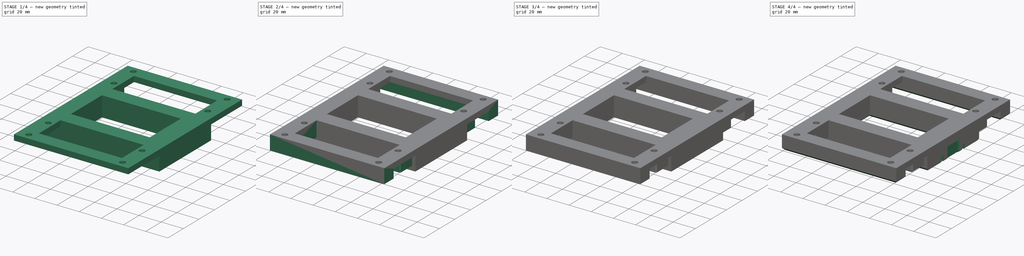
[diagram: build sequence overview — one tinted view per stage of 4, left to right]
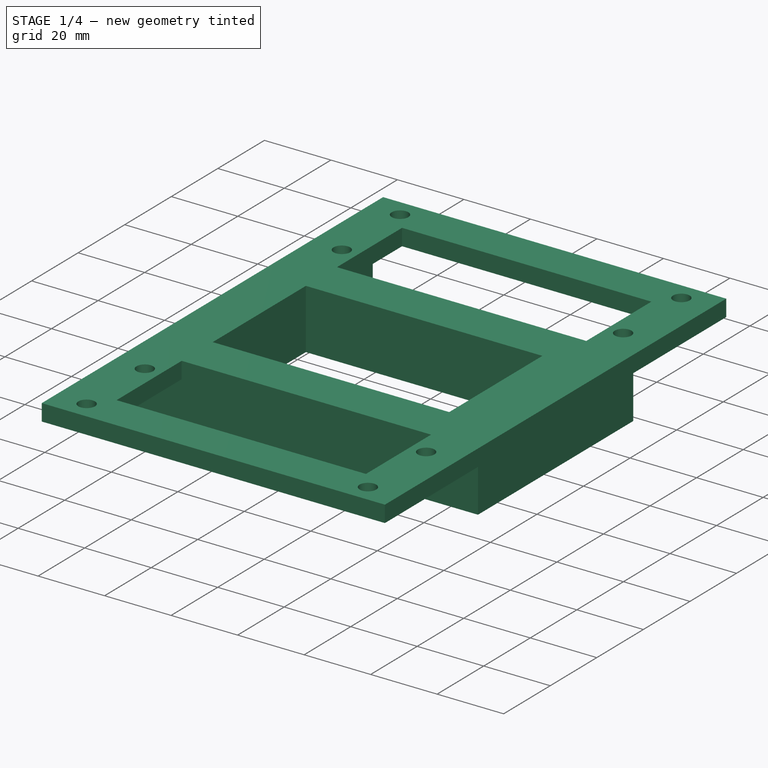
[diagram: stage 1 of 4 — iso view after this stage's code; geometry added in this stage tinted green]
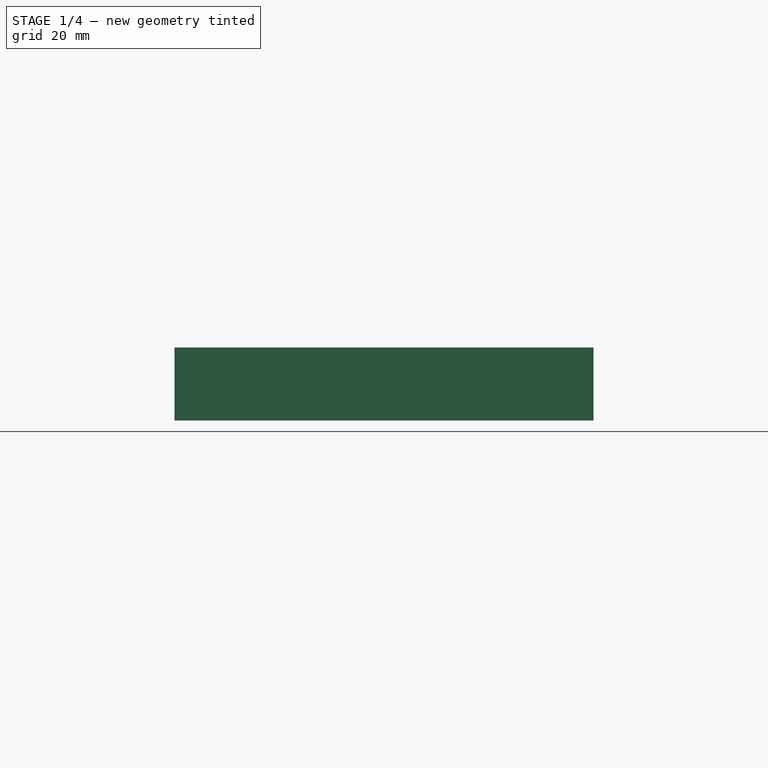
[diagram: stage 1 of 4 — front view after this stage's code; geometry added in this stage tinted green]
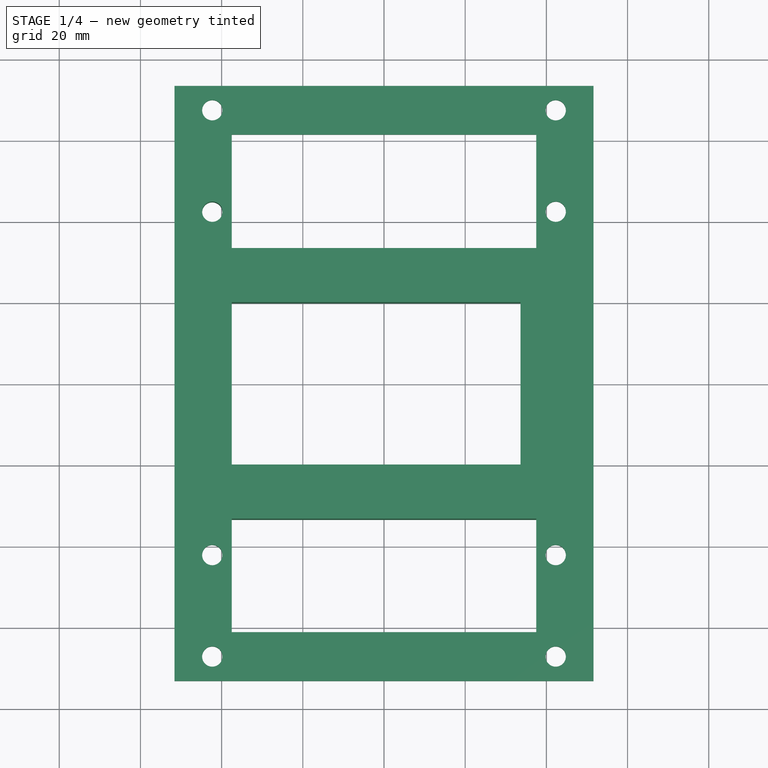
[diagram: stage 1 of 4 — top view after this stage's code; geometry added in this stage tinted green]
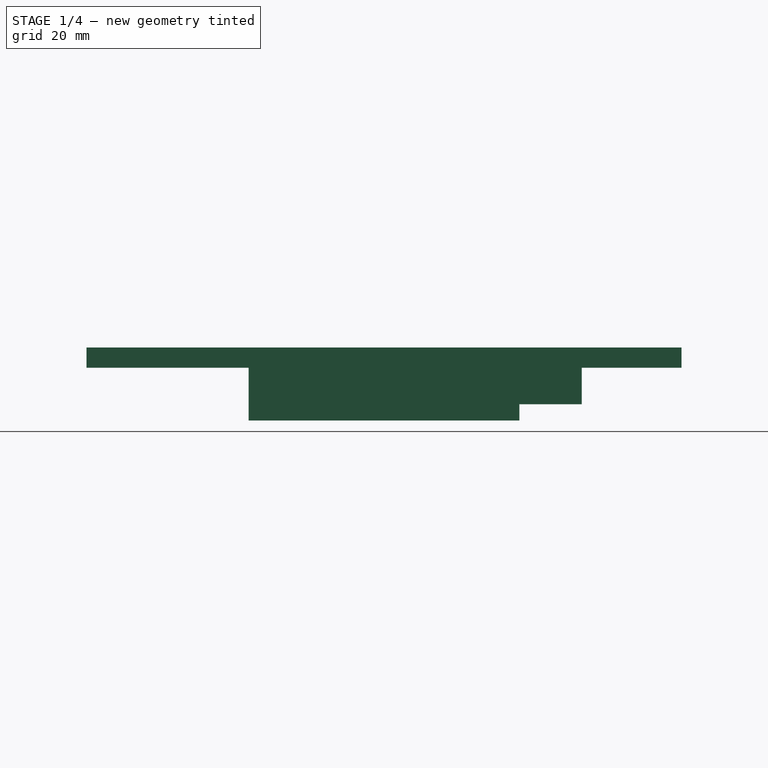
[diagram: stage 1 of 4 — right view after this stage's code; geometry added in this stage tinted green]
FCSTD DOCUMENT  (FreeCAD 0.18R15969 (Git))
Label: curing_rig_6
License: All rights reserved
LicenseURL: http://en.wikipedia.org/wiki/All_rights_reserved
objects: Sketcher::SketchObject×7, PartDesign::Pad×4, PartDesign::Mirrored×3, PartDesign::Pocket×3, Spreadsheet::Sheet×2, PartDesign::MultiTransform×2, PartDesign::Chamfer×2, Part::Feature×1, PartDesign::Body×1
note: 30 computed .brp shape members not serialized (recipe doc carries the construction recipe); baked Part::Feature solids carry a one-line shape summary decoded from their .brp

FEATURE [Spreadsheet::Sheet] Spreadsheet  label="Generic"
  cells = A1=Dimension; B1(dimension)==106.6mm; A2=Corner Radius; B2(cornerRadius)=2; C2=(mm); A3=Screw Diameter; B3(screwDiameter)=2.2; C3=(mm); A4=Screw Diameter Plastic; B4(screwDiameterPlastic)=2.8; C4=(mm); A5=Screw Distance; B5(screwDistance)=101; C5=(mm)
FEATURE [Spreadsheet::Sheet] Spreadsheet001  label="Unibody"
  cells = A1=Height; B1(height)=15; C1=(mm); A5=Rib Length; B5(ribLength)=5; A6=Rib Width; B6(ribWidth)=1.5; A7=Rib Height; B7(ribHeight)=2.8; A8=Rib Dist 1; B8(ribDist1)=19.05; A9=Rib Dist 2; B9(ribDist2)=34.29; C9==1.35in; A12=PCB Dimensions; B12(pcbDimensions)=100; A13=PCB Thickness; B13(pcbThickness)=1.6; A16=Feet Diameter; B16(feetDiameter)=10; A17=Feet Distance; B17(feetDistance)=85; A18=Feet Depth; B18(feetDepth)=0.5; A19=Feet Thickness; B19(feetThickness)=1
FEATURE [Sketcher::SketchObject] Sketch091
  MapMode = 5
  Support = -> [XY_Plane]
  expr: Constraints[34] = 102.6 + 0.6
  sketch-geometry (31):
    g0: LineSegment StartX=-51.6 StartY=73.3 StartZ=0 EndX=51.6 EndY=73.3 EndZ=0
    g1: LineSegment StartX=51.6 StartY=73.3 StartZ=0 EndX=51.6 EndY=-73.3 EndZ=0
    g2: LineSegment StartX=51.6 StartY=-73.3 StartZ=0 EndX=-51.6 EndY=-73.3 EndZ=0
    g3: LineSegment StartX=-51.6 StartY=-73.3 StartZ=0 EndX=-51.6 EndY=73.3 EndZ=0
    g4: LineSegment StartX=-37.5 StartY=61.3 StartZ=0 EndX=37.5 EndY=61.3 EndZ=0
    g5: LineSegment StartX=37.5 StartY=61.3 StartZ=0 EndX=37.5 EndY=-61.3 EndZ=0
    g6: LineSegment StartX=37.5 StartY=-61.3 StartZ=0 EndX=-37.5 EndY=-61.3 EndZ=0
    g7: LineSegment StartX=-37.5 StartY=-61.3 StartZ=0 EndX=-37.5 EndY=61.3 EndZ=0
    g8: LineSegment [constr] StartX=-37.5 StartY=61.3 StartZ=0 EndX=0 EndY=0 EndZ=0
    g9: LineSegment [constr] StartX=0 StartY=0 StartZ=0 EndX=37.5 EndY=61.3 EndZ=0
    g10: LineSegment [constr] StartX=0 StartY=0 StartZ=0 EndX=-37.5 EndY=-61.3 EndZ=0
    g11: LineSegment [constr] StartX=-51.6 StartY=73.3 StartZ=0 EndX=-7.1e-15 EndY=0 EndZ=0
    g12: LineSegment [constr] StartX=0 StartY=0 StartZ=0 EndX=51.6 EndY=73.3 EndZ=0
    g13: LineSegment [constr] StartX=0 StartY=0 StartZ=0 EndX=-51.6 EndY=-73.3 EndZ=0
    g14: LineSegment [constr] StartX=-42.3 StartY=42.3 StartZ=0 EndX=-42.3 EndY=-42.3 EndZ=0
    g15: LineSegment [constr] StartX=-42.3 StartY=-42.3 StartZ=0 EndX=42.3 EndY=-42.3 EndZ=0
    g16: LineSegment [constr] StartX=42.3 StartY=-42.3 StartZ=0 EndX=42.3 EndY=42.3 EndZ=0
    g17: LineSegment [constr] StartX=42.3 StartY=42.3 StartZ=0 EndX=-42.3 EndY=42.3 EndZ=0
    g18: Circle [constr] CenterX=0 CenterY=0 CenterZ=0 NormalX=0 NormalY=0 NormalZ=1 AngleXU=0 Radius=59.8212
    g19: Circle CenterX=-42.3 CenterY=42.3 CenterZ=0 NormalX=0 NormalY=0 NormalZ=1 AngleXU=0 Radius=2.5
    g20: Circle CenterX=42.3 CenterY=42.3 CenterZ=0 NormalX=0 NormalY=0 NormalZ=1 AngleXU=0 Radius=2.5
    g21: Circle CenterX=-42.3 CenterY=-42.3 CenterZ=0 NormalX=0 NormalY=0 NormalZ=1 AngleXU=0 Radius=2.5
    g22: Circle CenterX=42.3 CenterY=-42.3 CenterZ=0 NormalX=0 NormalY=0 NormalZ=1 AngleXU=0 Radius=2.5
    g23: LineSegment [constr] StartX=-42.3 StartY=42.3 StartZ=0 EndX=-42.3 EndY=67.3 EndZ=0
    g24: LineSegment [constr] StartX=42.3 StartY=42.3 StartZ=0 EndX=42.3 EndY=67.3 EndZ=0
    g25: LineSegment [constr] StartX=-42.3 StartY=-42.3 StartZ=0 EndX=-42.3 EndY=-67.3 EndZ=0
    g26: LineSegment [constr] StartX=42.3 StartY=-42.3 StartZ=0 EndX=42.3 EndY=-67.3 EndZ=0
    g27: Circle CenterX=-42.3 CenterY=67.3 CenterZ=0 NormalX=0 NormalY=0 NormalZ=1 AngleXU=0 Radius=2.5
    g28: Circle CenterX=42.3 CenterY=67.3 CenterZ=0 NormalX=0 NormalY=0 NormalZ=1 AngleXU=0 Radius=2.5
    g29: Circle CenterX=42.3 CenterY=-67.3 CenterZ=0 NormalX=0 NormalY=0 NormalZ=1 AngleXU=0 Radius=2.5
    g30: Circle CenterX=-42.3 CenterY=-67.3 CenterZ=0 NormalX=0 NormalY=0 NormalZ=1 AngleXU=0 Radius=2.5
  constraints (78):
    c: Coincident(g0,g1)
    c: Coincident(g1,g2)
    c: Coincident(g2,g3)
    c: Coincident(g3,g0)
    c: Horizontal(g0)
    c: Horizontal(g2)
    c: Vertical(g1)
    c: Vertical(g3)
    c: Coincident(g4,g5)
    c: Coincident(g5,g6)
    c: Coincident(g6,g7)
    c: Coincident(g7,g4)
    c: Horizontal(g4)
    c: Horizontal(g6)
    c: Vertical(g5)
    c: Vertical(g7)
    c: Coincident(g8,g4)
    c: Coincident(g8,g-1)
    c: Coincident(g9,g-1)
    c: Coincident(g9,g4)
    c: Coincident(g10,g-1)
    c: Coincident(g10,g6)
    c: Equal(g10,g8)
    c: Equal(g8,g9)
    c: Coincident(g11,g0)
    c: Coincident(g11,g-1)
    c: Coincident(g12,g-1)
    c: Coincident(g12,g0)
    c: Coincident(g13,g-1)
    c: Coincident(g13,g2)
    c: Equal(g13,g11)
    c: Equal(g11,g12)
    c: DistanceY(g7,g7) = 122.6
    c: DistanceX(g4,g4) = 75
    c: DistanceX(g0,g0) = 103.2
    c: DistanceY(g3,g3) = 146.6
    c: Coincident(g14,g15)
    c: Coincident(g15,g16)
    c: Coincident(g16,g17)
    c: Coincident(g17,g14)
    c: Equal(g14,g15)
    c: Equal(g14,g16)
    c: Equal(g14,g17)
    c: PointOnObject(g14,g18)
    c: PointOnObject(g15,g18)
    c: PointOnObject(g16,g18)
    c: PointOnObject(g17,g18)
    c: Coincident(g18,g-1)
    c: Horizontal(g17)
    c: DistanceX(g17,g17) = 84.6
    c: Coincident(g19,g14)
    c: Coincident(g20,g16)
    c: Coincident(g21,g14)
    c: Coincident(g22,g15)
    c: Radius(g22) = 2.5
    c: Equal(g22,g21)
    c: Equal(g22,g19)
    c: Equal(g22,g20)
    c: Coincident(g23,g19)
    c: Vertical(g23)
    c: Coincident(g24,g20)
    c: Vertical(g24)
    c: Coincident(g25,g21)
    c: Vertical(g25)
    c: Coincident(g26,g22)
    c: Vertical(g26)
    c: Equal(g25,g26)
    c: Equal(g26,g24)
    c: Equal(g24,g23)
    c: DistanceY(g23,g23) = 25
    c: Coincident(g27,g23)
    c: Coincident(g28,g24)
    c: Coincident(g29,g26)
    c: Coincident(g30,g25)
    c: Radius(g30) = 2.5
    c: Equal(g30,g29)
    c: Equal(g30,g28)
    c: Equal(g30,g27)
FEATURE [PartDesign::Pad] Pad046
  Length = 5
  Length2 = 100
  Profile = -> Sketch091
  Type = 0
FEATURE [Sketcher::SketchObject] Sketch092
  ExternalGeometry = -> [Pad046]
  MapMode = 5
  Placement = pos=(0,0,5) rot=(0,0,1;0rad)
  Support = -> [Pad046]
  sketch-geometry (25):
    g0: LineSegment StartX=-51.6 StartY=33.3375 StartZ=0 EndX=51.6 EndY=33.3375 EndZ=0
    g1: LineSegment StartX=51.6 StartY=33.3375 StartZ=0 EndX=51.6 EndY=20.0025 EndZ=0
    g2: LineSegment [constr] StartX=51.6 StartY=20.0025 StartZ=0 EndX=-51.6 EndY=20.0025 EndZ=0
    g3: LineSegment StartX=-51.6 StartY=20.0025 StartZ=0 EndX=-51.6 EndY=33.3375 EndZ=0
    g4: LineSegment [constr] StartX=-51.6 StartY=-20.0025 StartZ=0 EndX=51.6 EndY=-20.0025 EndZ=0
    g5: LineSegment StartX=51.6 StartY=-20.0025 StartZ=0 EndX=51.6 EndY=-33.3375 EndZ=0
    g6: LineSegment StartX=51.6 StartY=-33.3375 StartZ=0 EndX=-51.6 EndY=-33.3375 EndZ=0
    g7: LineSegment StartX=-51.6 StartY=-33.3375 StartZ=0 EndX=-51.6 EndY=-20.0025 EndZ=0
    g8: LineSegment [constr] StartX=-51.6 StartY=20.0025 StartZ=0 EndX=-51.6 EndY=-20.0025 EndZ=0
    g9: LineSegment [constr] StartX=51.6 StartY=20.0025 StartZ=0 EndX=51.6 EndY=-20.0025 EndZ=0
    g10: LineSegment [constr] StartX=-51.6 StartY=20.0025 StartZ=0 EndX=0 EndY=0 EndZ=0
    g11: LineSegment [constr] StartX=0 StartY=0 StartZ=0 EndX=51.6 EndY=20.0025 EndZ=0
    g12: LineSegment [constr] StartX=0 StartY=0 StartZ=0 EndX=-51.6 EndY=-20.0025 EndZ=0
    g13: LineSegment [constr] StartX=0 StartY=0 StartZ=0 EndX=-51.6 EndY=33.3375 EndZ=0
    g14: LineSegment [constr] StartX=0 StartY=0 StartZ=0 EndX=-51.6 EndY=-33.3375 EndZ=0
    g15: LineSegment [constr] StartX=-51.6 StartY=33.3375 StartZ=0 EndX=0 EndY=26.67 EndZ=0
    g16: LineSegment [constr] StartX=0 StartY=26.67 StartZ=0 EndX=-51.6 EndY=20.0025 EndZ=0
    g17: LineSegment StartX=-51.6 StartY=20.0025 StartZ=0 EndX=-51.6 EndY=-20.0025 EndZ=0
    g18: LineSegment StartX=51.6 StartY=20.0025 StartZ=0 EndX=51.6 EndY=-20.0025 EndZ=0
    g19: LineSegment StartX=-37.5 StartY=20.0025 StartZ=0 EndX=33.6215 EndY=20.0025 EndZ=0
    g20: LineSegment StartX=33.6215 StartY=20.0025 StartZ=0 EndX=33.6215 EndY=-20.0025 EndZ=0
    g21: LineSegment StartX=33.6215 StartY=-20.0025 StartZ=0 EndX=-37.5 EndY=-20.0025 EndZ=0
    g22: LineSegment StartX=-37.5 StartY=-20.0025 StartZ=0 EndX=-37.5 EndY=20.0025 EndZ=0
    g23: LineSegment [constr] StartX=-37.5 StartY=20.0025 StartZ=0 EndX=0 EndY=0 EndZ=0
    g24: LineSegment [constr] StartX=0 StartY=0 StartZ=0 EndX=33.6215 EndY=-20.0025 EndZ=0
  constraints (62):
    c: Coincident(g0,g1)
    c: Coincident(g1,g2)
    c: Coincident(g2,g3)
    c: Coincident(g3,g0)
    c: Horizontal(g0)
    c: Horizontal(g2)
    c: Vertical(g1)
    c: Vertical(g3)
    c: Coincident(g4,g5)
    c: Coincident(g5,g6)
    c: Coincident(g6,g7)
    c: Coincident(g7,g4)
    c: Horizontal(g4)
    c: Horizontal(g6)
    c: Vertical(g5)
    c: Vertical(g7)
    c: Coincident(g8,g2)
    c: Coincident(g8,g4)
    c: Vertical(g8)
    c: Coincident(g9,g1)
    c: Coincident(g9,g4)
    c: Vertical(g9)
    c: Coincident(g10,g2)
    c: Coincident(g10,g-1)
    c: Coincident(g11,g-1)
    c: Coincident(g11,g1)
    c: Coincident(g12,g-1)
    c: Coincident(g12,g4)
    c: Equal(g12,g10)
    c: Equal(g10,g11)
    c: Coincident(g13,g-1)
    c: Coincident(g13,g0)
    c: Coincident(g14,g-1)
    c: Coincident(g14,g6)
    c: Equal(g13,g14)
    c: Coincident(g15,g0)
    c: PointOnObject(g15,g-2)
    c: Coincident(g16,g15)
    c: Coincident(g16,g2)
    c: Equal(g16,g15)
    c: DistanceY(g-1,g15) = 26.67
    c: DistanceY(g3,g3) = 13.335
    c: PointOnObject(g0,g-3)
    c: Coincident(g17,g3)
    c: Coincident(g17,g7)
    c: Coincident(g18,g1)
    c: Coincident(g18,g5)
    c: Coincident(g19,g20)
    c: Coincident(g20,g21)
    c: Coincident(g21,g22)
    c: Coincident(g22,g19)
    c: Horizontal(g19)
    c: Horizontal(g21)
    c: Vertical(g20)
    c: Vertical(g22)
    c: PointOnObject(g19,g-4)
    c: PointOnObject(g20,g4)
    c: PointOnObject(g19,g2)
    c: Coincident(g23,g19)
    c: Coincident(g23,g-1)
    c: Coincident(g24,g-1)
    c: Coincident(g24,g20)
FEATURE [PartDesign::Pad] Pad047
  BaseFeature = -> Pad046
  Length = 18
  Length2 = 100
  Profile = -> Sketch092
  Refine = true
  Reversed = true
  Type = 0
FEATURE [Sketcher::SketchObject] Sketch093
  ExternalGeometry = -> [Pad047]
  MapMode = 5
  Placement = pos=(0,0,0) rot=(1,0,0;3.14159rad)
  Support = -> [Pad047]
  sketch-geometry (6):
    g0: Circle CenterX=-42.3 CenterY=-42.3 CenterZ=0 NormalX=0 NormalY=0 NormalZ=1 AngleXU=0 Radius=2.5
    g1: LineSegment StartX=-37.5 StartY=-33.3375 StartZ=0 EndX=-37.5 EndY=-48.7 EndZ=0
    g2: LineSegment StartX=-37.5 StartY=-33.3375 StartZ=0 EndX=-48.7 EndY=-33.3375 EndZ=0
    g3: LineSegment StartX=-48.7 StartY=-33.3375 StartZ=0 EndX=-48.7 EndY=-47.7 EndZ=0
    g4: LineSegment StartX=-37.5 StartY=-48.7 StartZ=0 EndX=-47.7 EndY=-48.7 EndZ=0
    g5: LineSegment StartX=-47.7 StartY=-48.7 StartZ=0 EndX=-48.7 EndY=-47.7 EndZ=0
  constraints (16):
    c: Coincident(g0,g-3)
    c: Radius(g0) = 2.5
    c: Coincident(g1,g-5)
    c: PointOnObject(g1,g-5)
    c: Coincident(g2,g1)
    c: PointOnObject(g2,g-4)
    c: Coincident(g3,g2)
    c: Vertical(g3)
    c: Coincident(g4,g1)
    c: Horizontal(g4)
    c: Coincident(g5,g4)
    c: Coincident(g5,g3)
    c: Angle(g5,g3) = 2.35619
    c: DistanceY(g4,g3) = 1
    c: DistanceY(g1,g-1) = 48.7
    c: DistanceX(g2,g-1) = 48.7
FEATURE [PartDesign::Pad] Pad048
  BaseFeature = -> Pad047
  Length = 9
  Length2 = 100
  Profile = -> Sketch093
  Refine = true
  Type = 0
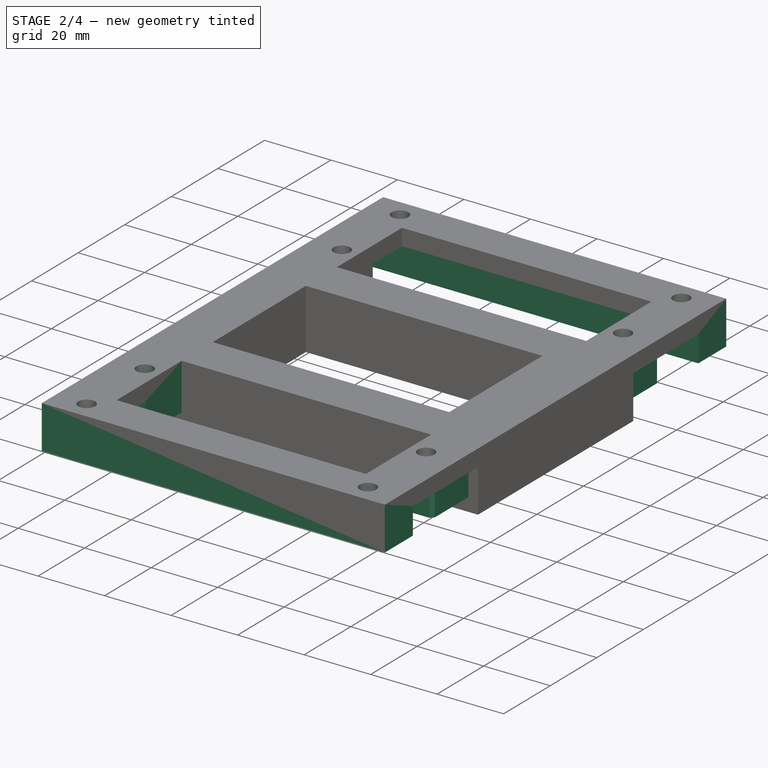
[diagram: stage 2 of 4 — iso view after this stage's code; geometry added in this stage tinted green]
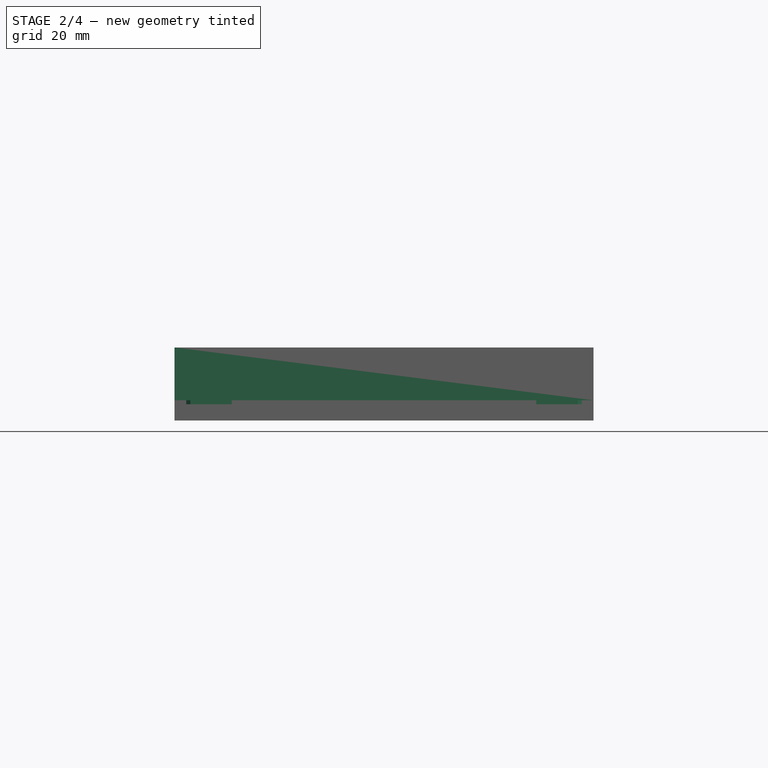
[diagram: stage 2 of 4 — front view after this stage's code; geometry added in this stage tinted green]
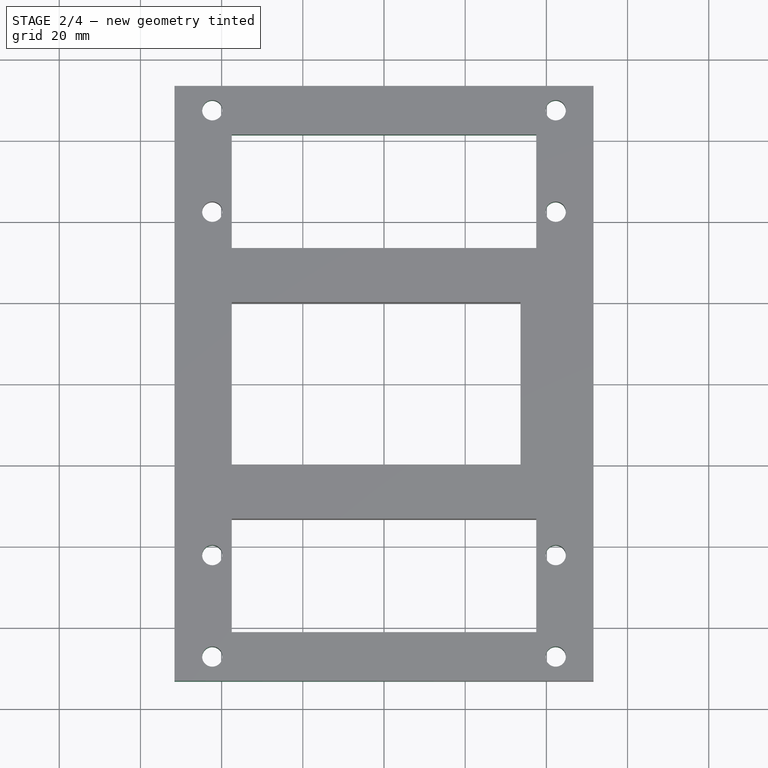
[diagram: stage 2 of 4 — top view after this stage's code; geometry added in this stage tinted green]
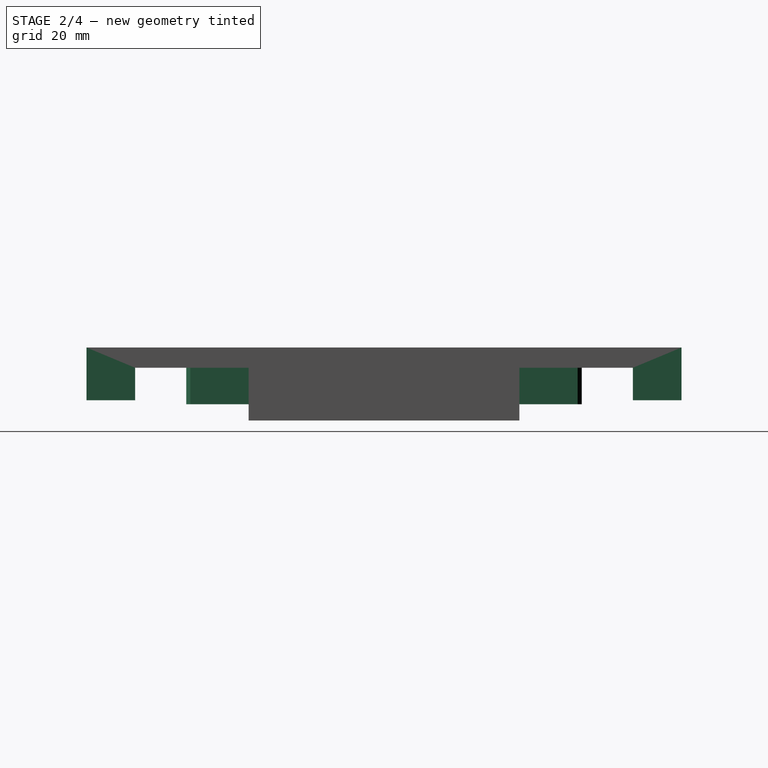
[diagram: stage 2 of 4 — right view after this stage's code; geometry added in this stage tinted green]
FEATURE [PartDesign::Mirrored] Mirrored
  MirrorPlane = -> XZ_Plane
FEATURE [PartDesign::Mirrored] Mirrored001
  MirrorPlane = -> YZ_Plane
FEATURE [PartDesign::MultiTransform] MultiTransform
  BaseFeature = -> Pad048
  Originals = -> [Pad048]
  Refine = true
  Transformations = -> [Mirrored,Mirrored001]
FEATURE [Sketcher::SketchObject] Sketch095
  ExternalGeometry = -> [MultiTransform]
  MapMode = 5
  Placement = pos=(0,0,0) rot=(1,0,0;3.14159rad)
  Support = -> [MultiTransform]
  sketch-geometry (12):
    g0: LineSegment StartX=-51.6 StartY=73.3 StartZ=0 EndX=51.6 EndY=73.3 EndZ=0
    g1: LineSegment StartX=51.6 StartY=73.3 StartZ=0 EndX=51.6 EndY=61.3 EndZ=0
    g2: LineSegment StartX=51.6 StartY=61.3 StartZ=0 EndX=-51.6 EndY=61.3 EndZ=0
    g3: LineSegment StartX=-51.6 StartY=61.3 StartZ=0 EndX=-51.6 EndY=73.3 EndZ=0
    g4: LineSegment StartX=-51.6 StartY=-73.3 StartZ=0 EndX=51.6 EndY=-73.3 EndZ=0
    g5: LineSegment StartX=51.6 StartY=-73.3 StartZ=0 EndX=51.6 EndY=-61.3 EndZ=0
    g6: LineSegment StartX=51.6 StartY=-61.3 StartZ=0 EndX=-51.6 EndY=-61.3 EndZ=0
    g7: LineSegment StartX=-51.6 StartY=-61.3 StartZ=0 EndX=-51.6 EndY=-73.3 EndZ=0
    g8: Circle CenterX=-42.3 CenterY=67.3 CenterZ=0 NormalX=0 NormalY=0 NormalZ=1 AngleXU=0 Radius=2.5
    g9: Circle CenterX=42.3 CenterY=67.3 CenterZ=0 NormalX=0 NormalY=0 NormalZ=1 AngleXU=0 Radius=2.5
    g10: Circle CenterX=-42.3 CenterY=-67.3 CenterZ=0 NormalX=0 NormalY=0 NormalZ=1 AngleXU=0 Radius=2.5
    g11: Circle CenterX=42.3 CenterY=-67.3 CenterZ=0 NormalX=0 NormalY=0 NormalZ=1 AngleXU=0 Radius=2.5
  constraints (28):
    c: Coincident(g0,g1)
    c: Coincident(g1,g2)
    c: Coincident(g2,g3)
    c: Coincident(g3,g0)
    c: Horizontal(g2)
    c: Vertical(g1)
    c: Vertical(g3)
    c: Coincident(g0,g-4)
    c: Coincident(g0,g-4)
    c: PointOnObject(g-5,g2)
    c: Coincident(g4,g5)
    c: Coincident(g5,g6)
    c: Coincident(g6,g7)
    c: Coincident(g7,g4)
    c: Horizontal(g6)
    c: Vertical(g5)
    c: Vertical(g7)
    c: Coincident(g4,g-9)
    c: Coincident(g4,g-9)
    c: PointOnObject(g-8,g6)
    c: Coincident(g8,g-3)
    c: Coincident(g9,g-6)
    c: Coincident(g10,g-7)
    c: Coincident(g11,g-10)
    c: Radius(g8) = 2.5
    c: Equal(g8,g9)
    c: Equal(g8,g11)
    c: Equal(g8,g10)
FEATURE [PartDesign::Pad] Pad050
  BaseFeature = -> MultiTransform
  Length = 8
  Length2 = 100
  Profile = -> Sketch095
  Refine = true
  Type = 0
FEATURE [Sketcher::SketchObject] Sketch096
  MapMode = 5
  Placement = pos=(0,0,-13) rot=(1,0,0;3.14159rad)
  Support = -> [Pad050]
  sketch-geometry (9):
    g0: LineSegment [constr] StartX=-26.67 StartY=26.67 StartZ=0 EndX=-26.67 EndY=-26.67 EndZ=0
    g1: LineSegment [constr] StartX=-26.67 StartY=-26.67 StartZ=0 EndX=26.67 EndY=-26.67 EndZ=0
    g2: LineSegment [constr] StartX=26.67 StartY=-26.67 StartZ=0 EndX=26.67 EndY=26.67 EndZ=0
    g3: LineSegment [constr] StartX=26.67 StartY=26.67 StartZ=0 EndX=-26.67 EndY=26.67 EndZ=0
    g4: Circle [constr] CenterX=0 CenterY=0 CenterZ=0 NormalX=0 NormalY=0 NormalZ=1 AngleXU=0 Radius=37.7171
    g5: Circle CenterX=-26.67 CenterY=26.67 CenterZ=0 NormalX=0 NormalY=0 NormalZ=1 AngleXU=0 Radius=3.5
    g6: Circle CenterX=26.67 CenterY=26.67 CenterZ=0 NormalX=0 NormalY=0 NormalZ=1 AngleXU=0 Radius=3.5
    g7: Circle CenterX=-26.67 CenterY=-26.67 CenterZ=0 NormalX=0 NormalY=0 NormalZ=1 AngleXU=0 Radius=3.5
    g8: Circle CenterX=26.67 CenterY=-26.67 CenterZ=0 NormalX=0 NormalY=0 NormalZ=1 AngleXU=0 Radius=3.5
  constraints (22):
    c: Coincident(g0,g1)
    c: Coincident(g1,g2)
    c: Coincident(g2,g3)
    c: Coincident(g3,g0)
    c: Equal(g0,g1)
    c: Equal(g0,g2)
    c: Equal(g0,g3)
    c: PointOnObject(g0,g4)
    c: PointOnObject(g1,g4)
    c: PointOnObject(g2,g4)
    c: PointOnObject(g3,g4)
    c: Coincident(g4,g-1)
    c: Horizontal(g3)
    c: DistanceX(g3,g3) = 53.34
    c: Coincident(g5,g0)
    c: Coincident(g6,g2)
    c: Coincident(g7,g0)
    c: Coincident(g8,g1)
    c: Radius(g8) = 3.5
    c: Equal(g8,g6)
    c: Equal(g8,g5)
    c: Equal(g8,g7)
FEATURE [PartDesign::Pocket] Pocket005
  BaseFeature = -> Pad050
  Length = 5
  Length2 = 100
  Profile = -> Sketch096
  Type = 0
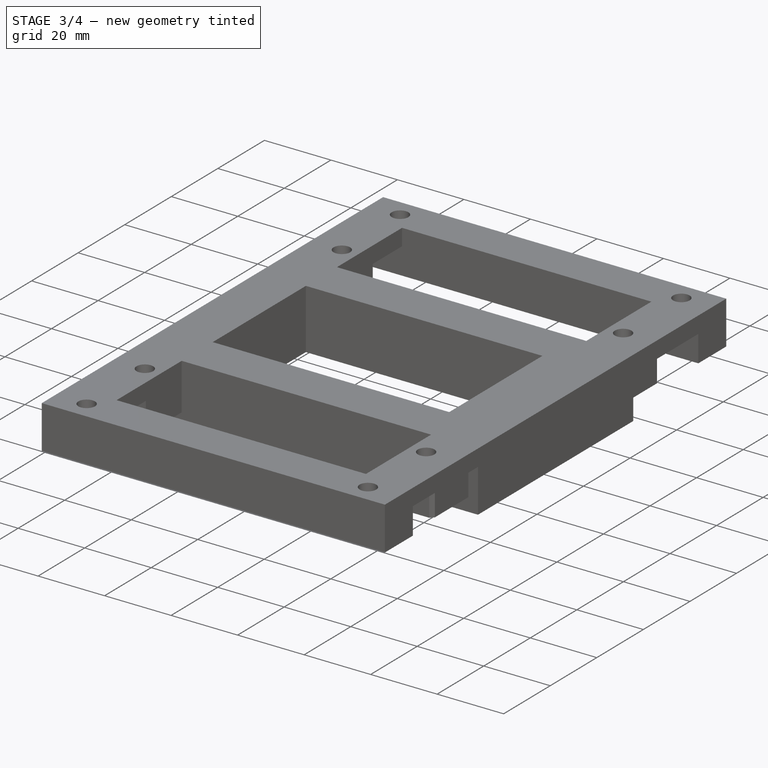
[diagram: stage 3 of 4 — iso view after this stage's code; geometry added in this stage tinted green]
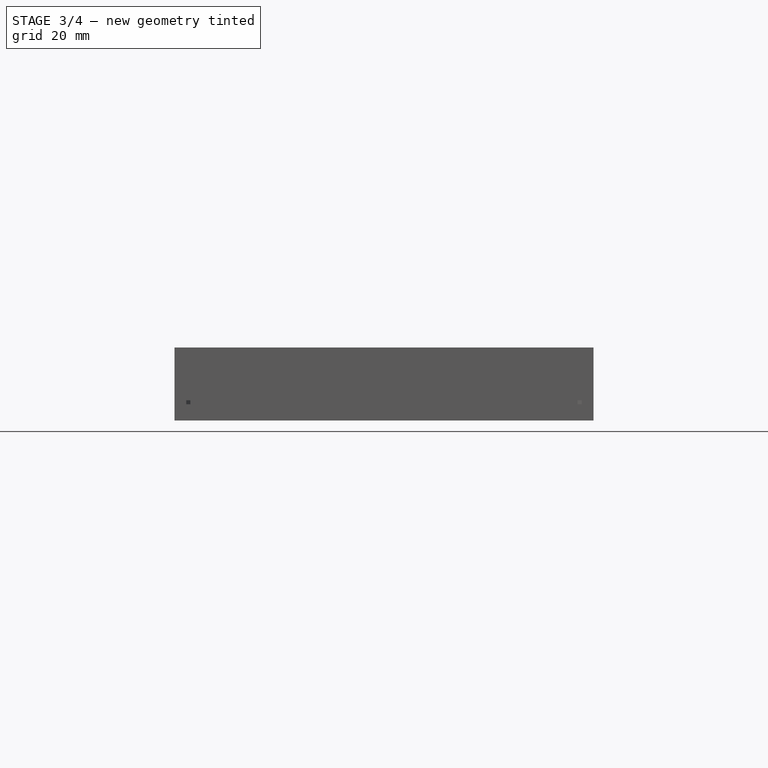
[diagram: stage 3 of 4 — front view after this stage's code; geometry added in this stage tinted green]
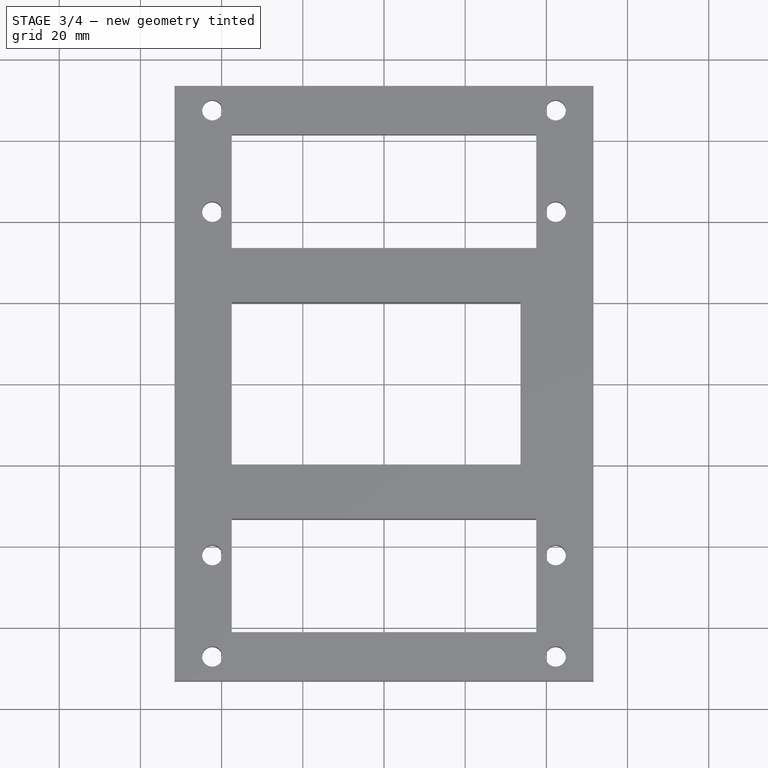
[diagram: stage 3 of 4 — top view after this stage's code; geometry added in this stage tinted green]
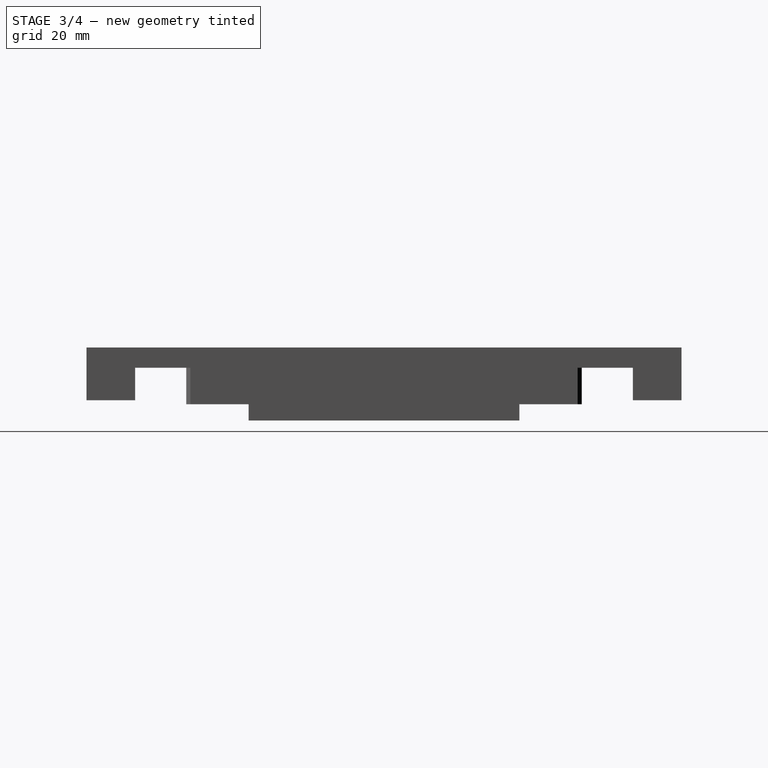
[diagram: stage 3 of 4 — right view after this stage's code; geometry added in this stage tinted green]
FEATURE [Part::Feature] Part__Feature  label="Boolean"
  Placement = pos=(0,0,0) rot=(0,0,1;1.5708rad)
  shape: bbox 114 x 114 x 15.33 mm, 1447 faces (baked)
FEATURE [Sketcher::SketchObject] Sketch097
  MapMode = 5
  Placement = pos=(-51.6,0,0) rot=(0.57735,-0.57735,-0.57735;2.0944rad)
  Support = -> [Pocket005]
  sketch-geometry (14):
    g0: LineSegment StartX=-14.835 StartY=-8 StartZ=0 EndX=-11.835 EndY=-8 EndZ=0
    g1: LineSegment StartX=-11.835 StartY=-8 StartZ=0 EndX=-11.835 EndY=-13 EndZ=0
    g2: LineSegment StartX=-11.835 StartY=-13 StartZ=0 EndX=-14.835 EndY=-13 EndZ=0
    g3: LineSegment StartX=-14.835 StartY=-13 StartZ=0 EndX=-14.835 EndY=-8 EndZ=0
    g4: LineSegment StartX=11.835 StartY=-8 StartZ=0 EndX=14.835 EndY=-8 EndZ=0
    g5: LineSegment StartX=14.835 StartY=-8 StartZ=0 EndX=14.835 EndY=-13 EndZ=0
    g6: LineSegment StartX=14.835 StartY=-13 StartZ=0 EndX=11.835 EndY=-13 EndZ=0
    g7: LineSegment StartX=11.835 StartY=-13 StartZ=0 EndX=11.835 EndY=-8 EndZ=0
    g8: LineSegment [constr] StartX=-14.835 StartY=-8 StartZ=0 EndX=-13.335 EndY=0 EndZ=0
    g9: LineSegment [constr] StartX=-13.335 StartY=0 StartZ=0 EndX=-11.835 EndY=-8 EndZ=0
    g10: LineSegment [constr] StartX=11.835 StartY=-8 StartZ=0 EndX=13.335 EndY=0 EndZ=0
    g11: LineSegment [constr] StartX=13.335 StartY=0 StartZ=0 EndX=14.835 EndY=-8 EndZ=0
    g12: LineSegment [constr] StartX=-13.335 StartY=0 StartZ=0 EndX=0 EndY=0 EndZ=0
    g13: LineSegment [constr] StartX=0 StartY=0 StartZ=0 EndX=13.335 EndY=0 EndZ=0
  constraints (38):
    c: Coincident(g0,g1)
    c: Coincident(g1,g2)
    c: Coincident(g2,g3)
    c: Coincident(g3,g0)
    c: Horizontal(g0)
    c: Horizontal(g2)
    c: Vertical(g1)
    c: Vertical(g3)
    c: Coincident(g4,g5)
    c: Coincident(g5,g6)
    c: Coincident(g6,g7)
    c: Coincident(g7,g4)
    c: Horizontal(g4)
    c: Horizontal(g6)
    c: Vertical(g5)
    c: Vertical(g7)
    c: DistanceY(g3,g3) = 5
    c: DistanceY(g2,g-1) = 13
    c: DistanceX(g0,g0) = 3
    c: Equal(g0,g4)
    c: Equal(g7,g1)
    c: Coincident(g8,g0)
    c: PointOnObject(g8,g-1)
    c: Coincident(g9,g8)
    c: Coincident(g9,g0)
    c: Coincident(g10,g4)
    c: PointOnObject(g10,g-1)
    c: Coincident(g11,g10)
    c: Coincident(g11,g4)
    c: Equal(g11,g10)
    c: Equal(g10,g9)
    c: Equal(g9,g8)
    c: Coincident(g12,g8)
    c: Coincident(g12,g-1)
    c: Coincident(g13,g-1)
    c: Coincident(g13,g10)
    c: Equal(g13,g12)
    c: DistanceX(g12,g12) = 13.335
FEATURE [PartDesign::Pocket] Pocket
  BaseFeature = -> Pocket005
  Length = 5
  Length2 = 100
  Profile = -> Sketch097
  Refine = true
  Type = 0
FEATURE [Sketcher::SketchObject] Sketch
  MapMode = 5
  Placement = pos=(-51.6,0,0) rot=(0.57735,-0.57735,-0.57735;2.0944rad)
  Support = -> [Pocket]
  sketch-geometry (6):
    g0: LineSegment StartX=-7.5 StartY=-2.5 StartZ=0 EndX=7.5 EndY=-2.5 EndZ=0
    g1: LineSegment StartX=7.5 StartY=-2.5 StartZ=0 EndX=7.5 EndY=-13 EndZ=0
    g2: LineSegment StartX=7.5 StartY=-13 StartZ=0 EndX=-7.5 EndY=-13 EndZ=0
    g3: LineSegment StartX=-7.5 StartY=-13 StartZ=0 EndX=-7.5 EndY=-2.5 EndZ=0
    g4: LineSegment [constr] StartX=-7.5 StartY=-13 StartZ=0 EndX=0 EndY=0 EndZ=0
    g5: LineSegment [constr] StartX=0 StartY=0 StartZ=0 EndX=7.5 EndY=-13 EndZ=0
  constraints (16):
    c: Coincident(g0,g1)
    c: Coincident(g1,g2)
    c: Coincident(g2,g3)
    c: Coincident(g3,g0)
    c: Horizontal(g0)
    c: Horizontal(g2)
    c: Vertical(g1)
    c: Vertical(g3)
    c: DistanceY(g2,g-1) = 13
    c: Coincident(g4,g2)
    c: Coincident(g4,g-1)
    c: Coincident(g5,g-1)
    c: Coincident(g5,g1)
    c: Equal(g5,g4)
    c: DistanceX(g0,g0) = 15
    c: DistanceY(g3,g3) = 10.5
FEATURE [PartDesign::Pocket] Pocket006
  BaseFeature = -> Pocket
  Length = 1.6
  Length2 = 100
  Profile = -> Sketch
  Refine = true
  Type = 0
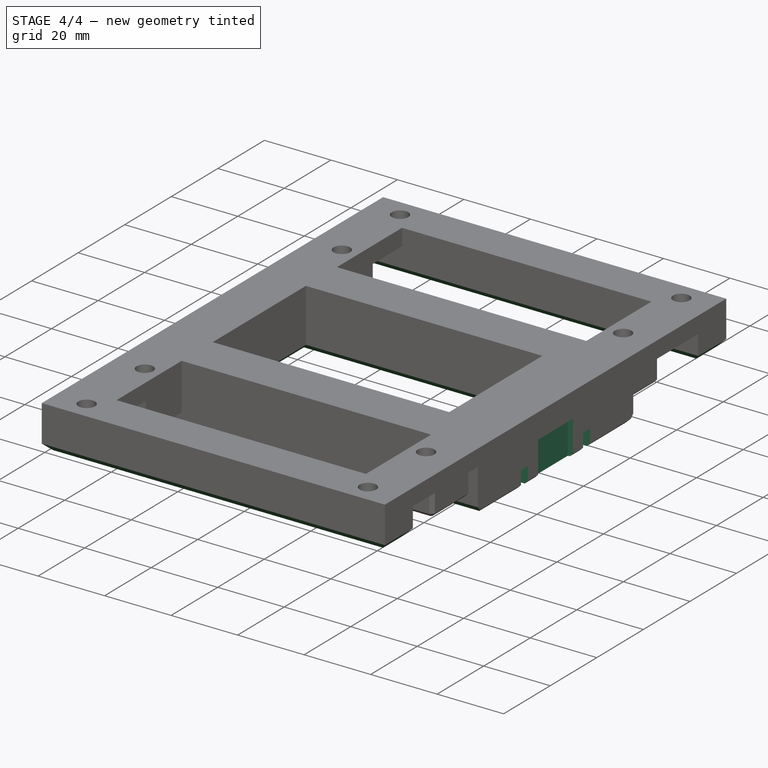
[diagram: stage 4 of 4 — iso view after this stage's code; geometry added in this stage tinted green]
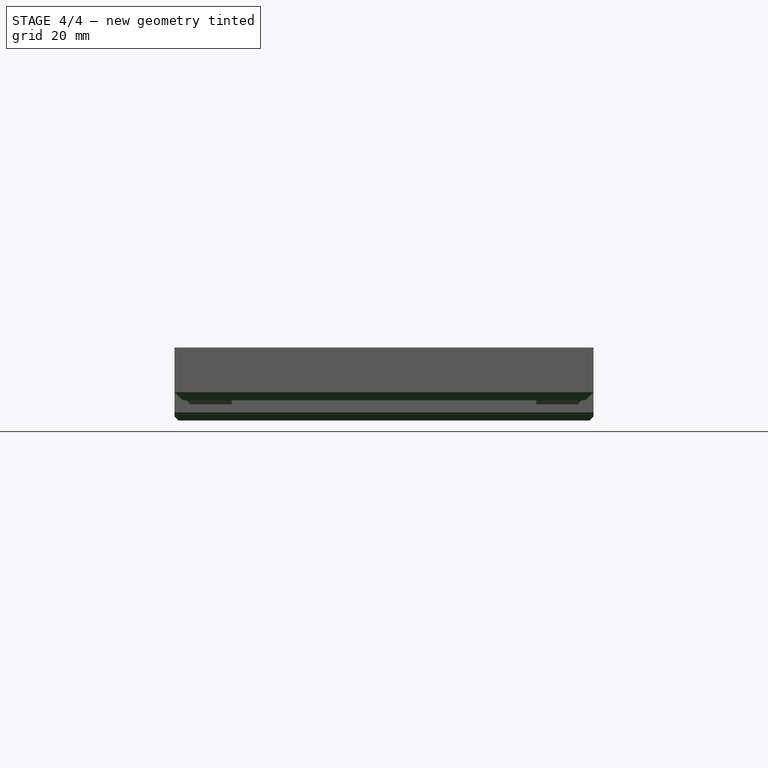
[diagram: stage 4 of 4 — front view after this stage's code; geometry added in this stage tinted green]
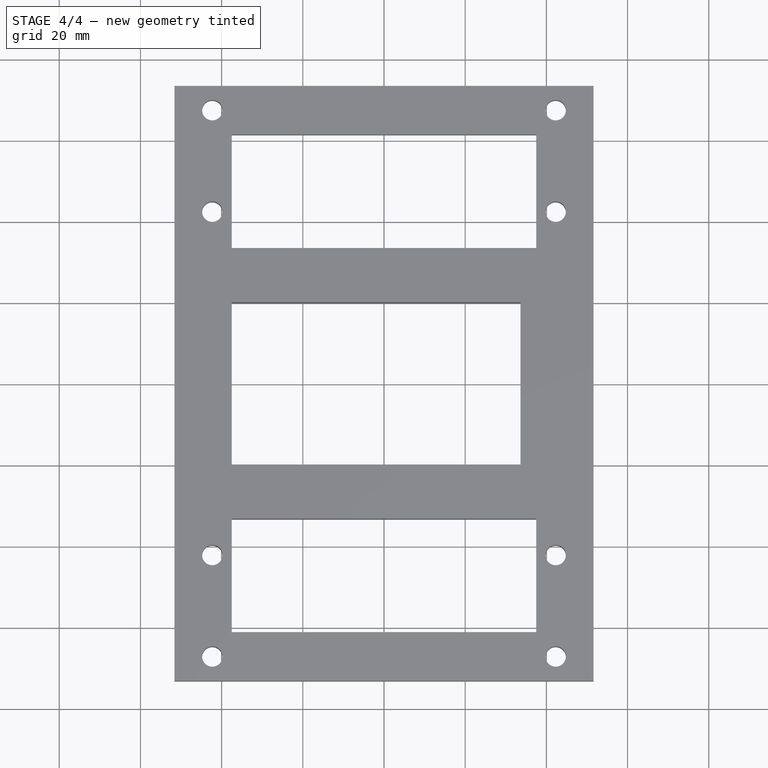
[diagram: stage 4 of 4 — top view after this stage's code; geometry added in this stage tinted green]
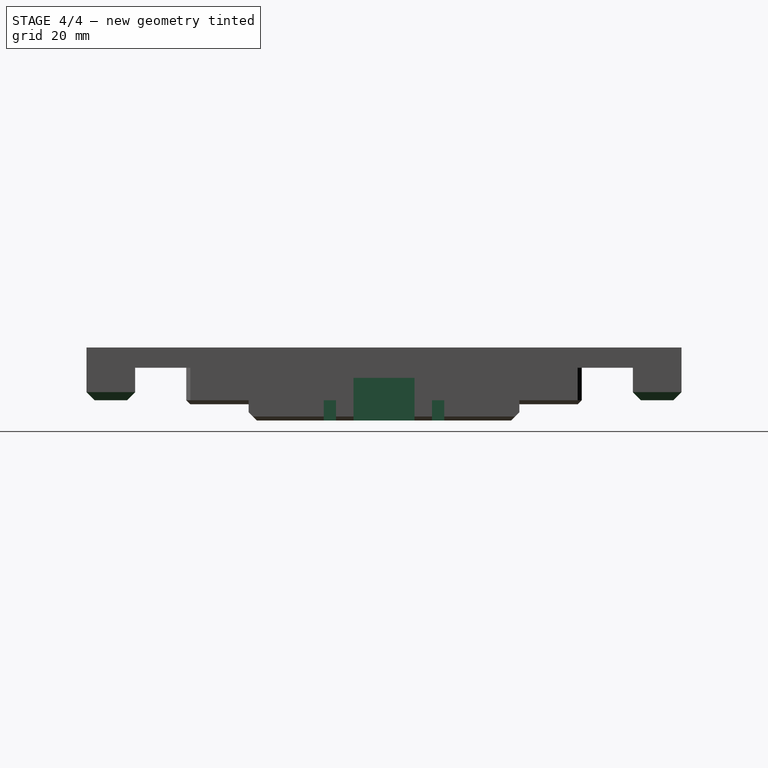
[diagram: stage 4 of 4 — right view after this stage's code; geometry added in this stage tinted green]
FEATURE [PartDesign::Mirrored] Mirrored002
  MirrorPlane = -> YZ_Plane
  Refine = true
FEATURE [PartDesign::MultiTransform] MultiTransform001
  BaseFeature = -> Pocket006
  Originals = -> [Pocket,Pocket006]
  Refine = true
  Transformations = -> [Mirrored002]
FEATURE [PartDesign::Chamfer] Chamfer
  Base = -> MultiTransform001 [Edge213,Edge215,Edge214,Edge55,Edge59,Edge63,Edge67,Edge207,Edge210,Edge209,Edge203,Edge205,Edge204,Edge34,Edge38,Edge42,Edge46,Edge217,Edge220,Edge219]
  BaseFeature = -> MultiTransform001
  Size = 1
FEATURE [PartDesign::Chamfer] Chamfer001
  Base = -> Chamfer [Edge93,Edge96,Edge97,Edge15,Edge53,Edge7,Edge58,Edge59,Edge128,Edge35,Edge176,Edge177,Edge179,Edge178]
  BaseFeature = -> Chamfer
  Size = 2
FEATURE [PartDesign::Body] Body
  Group = -> [Sketch091,Pad046,Sketch092,Pad047,Sketch093,Pad048,MultiTransform,Mirrored,Mirrored001,Sketch095,Pad050,Sketch096,Pocket005,Sketch097,Pocket,Sketch,Pocket006,MultiTransform001,Mirrored002,Chamfer,Chamfer001]
  Origin = -> Origin
  Tip = -> Chamfer001
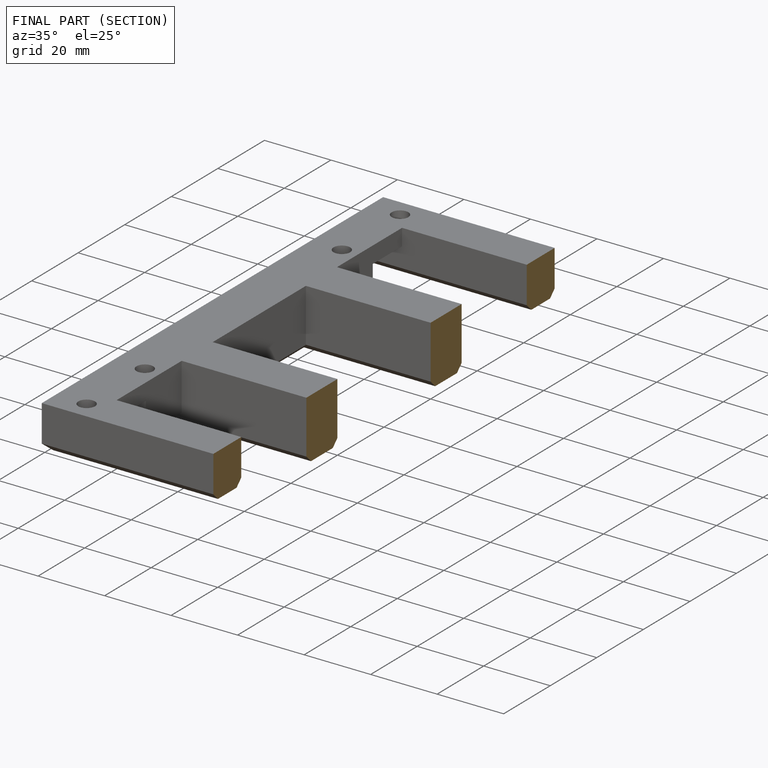
[diagram: finished part — half-section view (interior)]
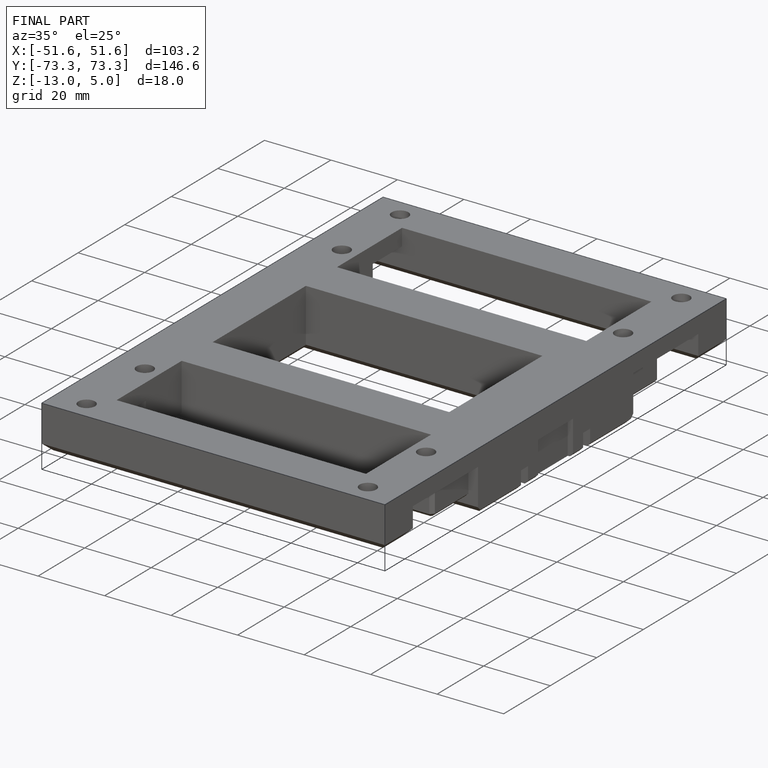
[diagram: finished part — iso view with bounding-box wireframe]
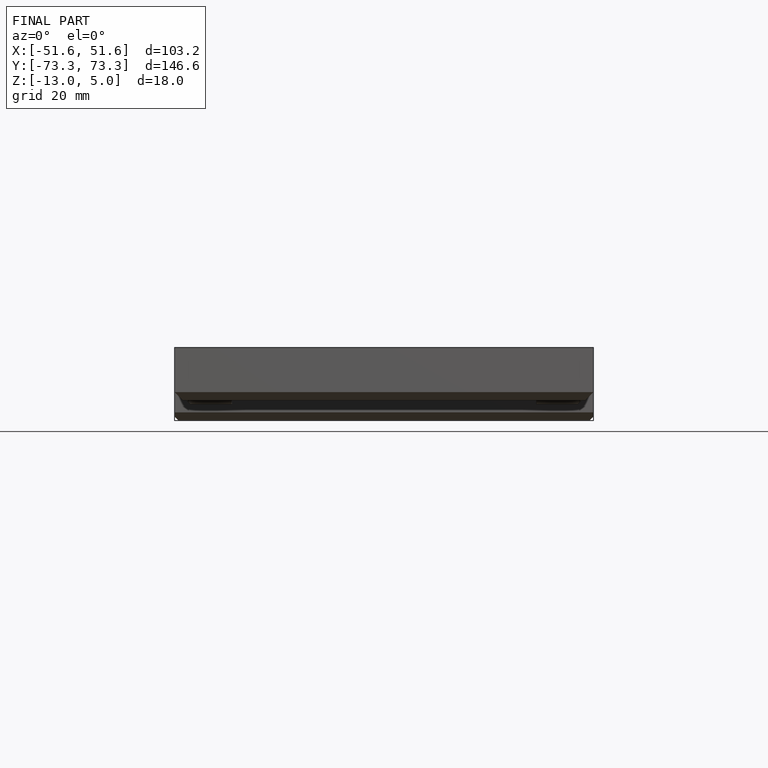
[diagram: finished part — front view with bounding-box wireframe]
